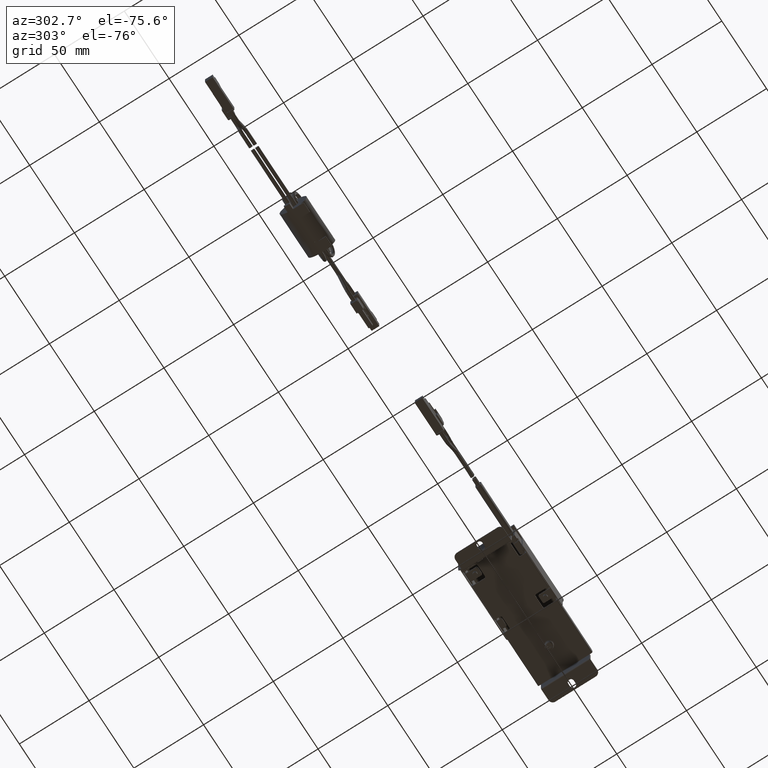
[diagram: clean part render]
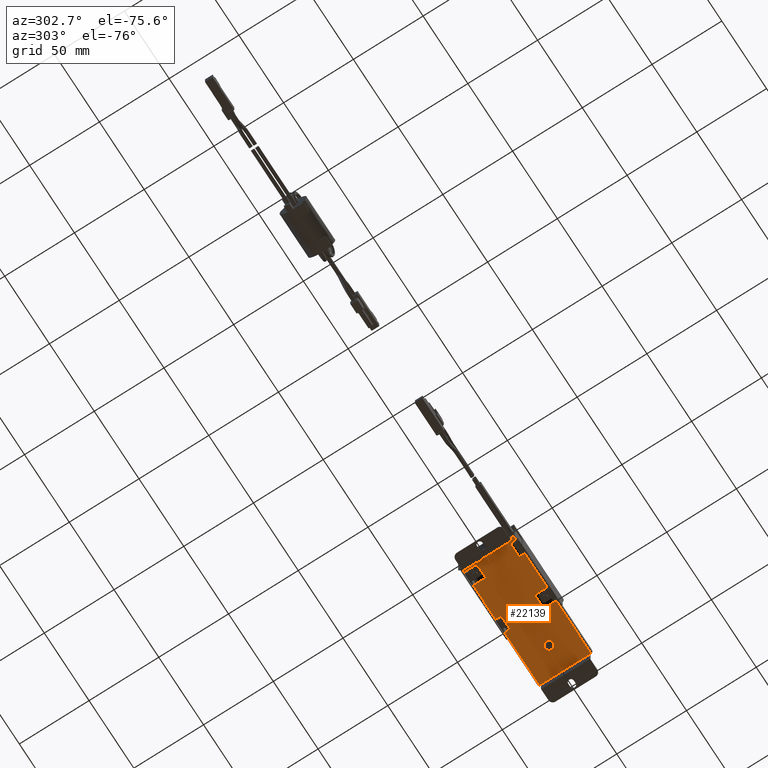
[diagram: same view with one face highlighted and labeled with its STEP entity id]
A machine part, auxiliary view. The second image highlights one B-rep face of the part: STEP entity #22139.
In plain terms, the highlighted face is a freeform B-spline surface patch.
Its self-contained STEP definition (entity closure, byte-faithful):
#18295=CARTESIAN_POINT('',(-25.699676512650960,2.985207617637829,9.937370197300428));
#18296=VERTEX_POINT('',#18295);
#18302=CARTESIAN_POINT('',(-22.526307356568019,-2.131628E-013,9.937370197300428));
#18303=VERTEX_POINT('',#18302);
#18304=CARTESIAN_POINT('',(-25.699676512650960,2.985207617637829,9.937370197300426));
#18305=CARTESIAN_POINT('',(-25.608470170901832,2.990786036474176,9.937370197300428));
#18306=CARTESIAN_POINT('',(-25.517093393042401,2.990786036474177,9.937370197300428));
#18307=CARTESIAN_POINT('',(-22.526307356568012,2.990786036474176,9.937370197300428));
#18308=CARTESIAN_POINT('',(-22.526307356568019,-2.131628E-013,9.937370197300428));
#18316=(BOUNDED_CURVE()B_SPLINE_CURVE(2,(#18304,#18305,#18306,#18307,#18308),.UNSPECIFIED.,.F.,.U.)B_SPLINE_CURVE_WITH_KNOTS((3,2,3),(0.239332962240780,0.250000000000000,0.500000000000000),.UNSPECIFIED.)CURVE()GEOMETRIC_REPRESENTATION_ITEM()RATIONAL_B_SPLINE_CURVE((0.976072041670656,0.987502787901990,1.0,0.707106781186547,1.0))REPRESENTATION_ITEM(''));
#18317=EDGE_CURVE('',#18296,#18303,#18316,.T.);
#18319=CARTESIAN_POINT('',(-25.334510273433839,-2.985207617638255,9.937370197300428));
#18320=VERTEX_POINT('',#18319);
#18321=CARTESIAN_POINT('',(-22.526307356568019,-2.131628E-013,9.937370197300428));
#18322=CARTESIAN_POINT('',(-22.526307356568015,-2.813450569309100,9.937370197300428));
#18323=CARTESIAN_POINT('',(-25.334510273433839,-2.985207617638255,9.937370197300428));
#18331=(BOUNDED_CURVE()B_SPLINE_CURVE(2,(#18321,#18322,#18323),.UNSPECIFIED.,.F.,.U.)B_SPLINE_CURVE_WITH_KNOTS((3,3),(0.500000000000000,0.739332962240780),.UNSPECIFIED.)CURVE()GEOMETRIC_REPRESENTATION_ITEM()RATIONAL_B_SPLINE_CURVE((1.0,0.719603993284558,0.976072041670655))REPRESENTATION_ITEM(''));
#18332=EDGE_CURVE('',#18303,#18320,#18331,.T.);
#18364=CARTESIAN_POINT('',(-28.507879429516791,-2.131628E-013,9.937370197300428));
#18365=VERTEX_POINT('',#18364);
#18366=CARTESIAN_POINT('',(-25.334510273433835,-2.985207617638255,9.937370197300428));
#18367=CARTESIAN_POINT('',(-25.425716615182967,-2.990786036474603,9.937370197300428));
#18368=CARTESIAN_POINT('',(-25.517093393042401,-2.990786036474603,9.937370197300428));
#18369=CARTESIAN_POINT('',(-28.507879429516798,-2.990786036474603,9.937370197300428));
#18370=CARTESIAN_POINT('',(-28.507879429516791,-2.131628E-013,9.937370197300428));
#18378=(BOUNDED_CURVE()B_SPLINE_CURVE(2,(#18366,#18367,#18368,#18369,#18370),.UNSPECIFIED.,.F.,.U.)B_SPLINE_CURVE_WITH_KNOTS((3,2,3),(0.739332962240780,0.750000000000000,1.0),.UNSPECIFIED.)CURVE()GEOMETRIC_REPRESENTATION_ITEM()RATIONAL_B_SPLINE_CURVE((0.976072041670655,0.987502787901990,1.0,0.707106781186547,1.0))REPRESENTATION_ITEM(''));
#18379=EDGE_CURVE('',#18320,#18365,#18378,.T.);
#18381=CARTESIAN_POINT('',(-28.507879429516791,-2.131628E-013,9.937370197300428));
#18382=CARTESIAN_POINT('',(-28.507879429516787,2.813450569308677,9.937370197300428));
#18383=CARTESIAN_POINT('',(-25.699676512650957,2.985207617637830,9.937370197300428));
#18391=(BOUNDED_CURVE()B_SPLINE_CURVE(2,(#18381,#18382,#18383),.UNSPECIFIED.,.F.,.U.)B_SPLINE_CURVE_WITH_KNOTS((3,3),(0.0,0.239332962240780),.UNSPECIFIED.)CURVE()GEOMETRIC_REPRESENTATION_ITEM()RATIONAL_B_SPLINE_CURVE((1.0,0.719603993284557,0.976072041670656))REPRESENTATION_ITEM(''));
#18392=EDGE_CURVE('',#18365,#18296,#18391,.T.);
#19391=CARTESIAN_POINT('',(-94.485565534138303,-17.500000000000000,9.937370197300428));
#19392=VERTEX_POINT('',#19391);
#19465=CARTESIAN_POINT('',(-94.485565534138303,17.500000000000000,9.937370197300449));
#19466=VERTEX_POINT('',#19465);
#19509=CARTESIAN_POINT('',(-7.513927424065190,17.499999999999648,9.937370197300428));
#19510=VERTEX_POINT('',#19509);
#19517=CARTESIAN_POINT('',(-7.513927424065170,-17.500000000000401,9.937370197300449));
#19518=VERTEX_POINT('',#19517);
#19524=CARTESIAN_POINT('',(-7.513927424065190,17.499999999999648,9.937370197300428));
#19525=CARTESIAN_POINT('',(-7.513927424065170,-17.500000000000401,9.937370197300449));
#19526=QUASI_UNIFORM_CURVE('',1,(#19524,#19525),.UNSPECIFIED.,.F.,.U.);
#19527=EDGE_CURVE('',#19510,#19518,#19526,.T.);
#19766=CARTESIAN_POINT('',(-94.485565534138303,17.500000000000000,9.937370197300449));
#19767=CARTESIAN_POINT('',(-94.485565534138303,-17.500000000000000,9.937370197300428));
#19768=QUASI_UNIFORM_CURVE('',1,(#19766,#19767),.UNSPECIFIED.,.F.,.U.);
#19769=EDGE_CURVE('',#19466,#19392,#19768,.T.);
#19796=CARTESIAN_POINT('',(-91.488721362279207,-18.501588054906851,9.937370197300428));
#19797=VERTEX_POINT('',#19796);
#19813=CARTESIAN_POINT('',(-94.485565534138203,-18.501588054906900,9.937370197300449));
#19814=VERTEX_POINT('',#19813);
#19828=CARTESIAN_POINT('',(-91.488721362279207,-18.501588054906851,9.937370197300428));
#19829=CARTESIAN_POINT('',(-94.485565534138203,-18.501588054906900,9.937370197300449));
#19830=QUASI_UNIFORM_CURVE('',1,(#19828,#19829),.UNSPECIFIED.,.F.,.U.);
#19831=EDGE_CURVE('',#19797,#19814,#19830,.T.);
#19852=CARTESIAN_POINT('',(-56.488721362279207,-18.501588054906851,9.937370197300428));
#19853=VERTEX_POINT('',#19852);
#19869=CARTESIAN_POINT('',(-81.488721362279193,-18.501588054906900,9.937370197300428));
#19870=VERTEX_POINT('',#19869);
#19884=CARTESIAN_POINT('',(-56.488721362279207,-18.501588054906851,9.937370197300428));
#19885=CARTESIAN_POINT('',(-81.488721362279193,-18.501588054906900,9.937370197300428));
#19886=QUASI_UNIFORM_CURVE('',1,(#19884,#19885),.UNSPECIFIED.,.F.,.U.);
#19887=EDGE_CURVE('',#19853,#19870,#19886,.T.);
#20517=CARTESIAN_POINT('',(-56.488721362279207,-10.501588054906859,9.937370197300428));
#20518=VERTEX_POINT('',#20517);
#20524=CARTESIAN_POINT('',(-55.488721362279207,-9.501588054906891,9.937370197300428));
#20525=VERTEX_POINT('',#20524);
#20526=CARTESIAN_POINT('',(-55.488721362279207,-9.501588054906900,9.937370197300428));
#20527=CARTESIAN_POINT('',(-56.488721362279207,-9.501588054906900,9.937370197300428));
#20528=CARTESIAN_POINT('',(-56.488721362279207,-10.501588054906900,9.937370197300428));
#20536=(BOUNDED_CURVE()B_SPLINE_CURVE(2,(#20526,#20527,#20528),.UNSPECIFIED.,.F.,.U.)CURVE()GEOMETRIC_REPRESENTATION_ITEM()QUASI_UNIFORM_CURVE()RATIONAL_B_SPLINE_CURVE((1.0,0.707106781186548,1.0))REPRESENTATION_ITEM(''));
#20537=EDGE_CURVE('',#20525,#20518,#20536,.T.);
#20561=CARTESIAN_POINT('',(-46.488721362279200,-10.501588054906859,9.937370197300428));
#20562=VERTEX_POINT('',#20561);
#20563=CARTESIAN_POINT('',(-47.488721362279207,-9.501588054906891,9.937370197300428));
#20564=VERTEX_POINT('',#20563);
#20565=CARTESIAN_POINT('',(-46.488721362279200,-10.501588054906900,9.937370197300428));
#20566=CARTESIAN_POINT('',(-46.488721362279200,-9.501588054906900,9.937370197300428));
#20567=CARTESIAN_POINT('',(-47.488721362279207,-9.501588054906900,9.937370197300428));
#20575=(BOUNDED_CURVE()B_SPLINE_CURVE(2,(#20565,#20566,#20567),.UNSPECIFIED.,.F.,.U.)CURVE()GEOMETRIC_REPRESENTATION_ITEM()QUASI_UNIFORM_CURVE()RATIONAL_B_SPLINE_CURVE((1.0,0.707106781186548,1.0))REPRESENTATION_ITEM(''));
#20576=EDGE_CURVE('',#20562,#20564,#20575,.T.);
#20639=CARTESIAN_POINT('',(-91.488721362279207,-15.501588054906851,9.937370197300428));
#20640=VERTEX_POINT('',#20639);
#20646=CARTESIAN_POINT('',(-90.488721362279207,-14.501588054906900,9.937370197300428));
#20647=VERTEX_POINT('',#20646);
#20648=CARTESIAN_POINT('',(-90.488721362279207,-14.501588054906900,9.937370197300428));
#20649=CARTESIAN_POINT('',(-91.488721362279222,-14.501588054906907,9.937370197300428));
#20650=CARTESIAN_POINT('',(-91.488721362279207,-15.501588054906900,9.937370197300428));
#20658=(BOUNDED_CURVE()B_SPLINE_CURVE(2,(#20648,#20649,#20650),.UNSPECIFIED.,.F.,.U.)CURVE()GEOMETRIC_REPRESENTATION_ITEM()QUASI_UNIFORM_CURVE()RATIONAL_B_SPLINE_CURVE((1.0,0.707106781186548,1.0))REPRESENTATION_ITEM(''));
#20659=EDGE_CURVE('',#20647,#20640,#20658,.T.);
#20683=CARTESIAN_POINT('',(-81.488721362279193,-15.501588054906851,9.937370197300428));
#20684=VERTEX_POINT('',#20683);
#20685=CARTESIAN_POINT('',(-82.488721362279193,-14.501588054906900,9.937370197300428));
#20686=VERTEX_POINT('',#20685);
#20687=CARTESIAN_POINT('',(-81.488721362279193,-15.501588054906900,9.937370197300428));
#20688=CARTESIAN_POINT('',(-81.488721362279193,-14.501588054906907,9.937370197300428));
#20689=CARTESIAN_POINT('',(-82.488721362279193,-14.501588054906900,9.937370197300428));
#20697=(BOUNDED_CURVE()B_SPLINE_CURVE(2,(#20687,#20688,#20689),.UNSPECIFIED.,.F.,.U.)CURVE()GEOMETRIC_REPRESENTATION_ITEM()QUASI_UNIFORM_CURVE()RATIONAL_B_SPLINE_CURVE((1.0,0.707106781186548,1.0))REPRESENTATION_ITEM(''));
#20698=EDGE_CURVE('',#20684,#20686,#20697,.T.);
#20744=CARTESIAN_POINT('',(-82.488721362279193,9.501588054906650,9.937370197300428));
#20745=VERTEX_POINT('',#20744);
#20751=CARTESIAN_POINT('',(-90.488721362279207,9.501588054906650,9.937370197300428));
#20752=VERTEX_POINT('',#20751);
#20753=CARTESIAN_POINT('',(-82.488721362279193,9.501588054906650,9.937370197300428));
#20754=CARTESIAN_POINT('',(-90.488721362279207,9.501588054906650,9.937370197300428));
#20755=QUASI_UNIFORM_CURVE('',1,(#20753,#20754),.UNSPECIFIED.,.F.,.U.);
#20756=EDGE_CURVE('',#20745,#20752,#20755,.T.);
#20846=CARTESIAN_POINT('',(-47.488721362279207,14.501588054906639,9.937370197300428));
#20847=VERTEX_POINT('',#20846);
#20853=CARTESIAN_POINT('',(-55.488721362279207,14.501588054906639,9.937370197300428));
#20854=VERTEX_POINT('',#20853);
#20855=CARTESIAN_POINT('',(-47.488721362279207,14.501588054906639,9.937370197300428));
#20856=CARTESIAN_POINT('',(-55.488721362279207,14.501588054906639,9.937370197300428));
#20857=QUASI_UNIFORM_CURVE('',1,(#20855,#20856),.UNSPECIFIED.,.F.,.U.);
#20858=EDGE_CURVE('',#20847,#20854,#20857,.T.);
#20881=CARTESIAN_POINT('',(-46.488721362279200,-18.501588054906900,9.937370197300428));
#20882=VERTEX_POINT('',#20881);
#20883=CARTESIAN_POINT('',(-46.488721362279200,-10.501588054906859,9.937370197300428));
#20884=CARTESIAN_POINT('',(-46.488721362279200,-18.501588054906900,9.937370197300428));
#20885=QUASI_UNIFORM_CURVE('',1,(#20883,#20884),.UNSPECIFIED.,.F.,.U.);
#20886=EDGE_CURVE('',#20562,#20882,#20885,.T.);
#20930=CARTESIAN_POINT('',(-56.488721362279207,-10.501588054906859,9.937370197300428));
#20931=CARTESIAN_POINT('',(-56.488721362279207,-18.501588054906851,9.937370197300428));
#20932=QUASI_UNIFORM_CURVE('',1,(#20930,#20931),.UNSPECIFIED.,.F.,.U.);
#20933=EDGE_CURVE('',#20518,#19853,#20932,.T.);
#21066=CARTESIAN_POINT('',(-55.488721362279207,-9.501588054906891,9.937370197300428));
#21067=CARTESIAN_POINT('',(-47.488721362279207,-9.501588054906891,9.937370197300428));
#21068=QUASI_UNIFORM_CURVE('',1,(#21066,#21067),.UNSPECIFIED.,.F.,.U.);
#21069=EDGE_CURVE('',#20525,#20564,#21068,.T.);
#21094=CARTESIAN_POINT('',(-81.488721362279193,-15.501588054906851,9.937370197300428));
#21095=CARTESIAN_POINT('',(-81.488721362279193,-18.501588054906900,9.937370197300428));
#21096=QUASI_UNIFORM_CURVE('',1,(#21094,#21095),.UNSPECIFIED.,.F.,.U.);
#21097=EDGE_CURVE('',#20684,#19870,#21096,.T.);
#21127=CARTESIAN_POINT('',(-91.488721362279207,-15.501588054906851,9.937370197300428));
#21128=CARTESIAN_POINT('',(-91.488721362279207,-18.501588054906851,9.937370197300428));
#21129=QUASI_UNIFORM_CURVE('',1,(#21127,#21128),.UNSPECIFIED.,.F.,.U.);
#21130=EDGE_CURVE('',#20640,#19797,#21129,.T.);
#21263=CARTESIAN_POINT('',(-90.488721362279207,-14.501588054906900,9.937370197300428));
#21264=CARTESIAN_POINT('',(-82.488721362279193,-14.501588054906900,9.937370197300428));
#21265=QUASI_UNIFORM_CURVE('',1,(#21263,#21264),.UNSPECIFIED.,.F.,.U.);
#21266=EDGE_CURVE('',#20647,#20686,#21265,.T.);
#21293=CARTESIAN_POINT('',(-7.513927424065170,-18.501588054906900,9.937370197300449));
#21294=VERTEX_POINT('',#21293);
#21295=CARTESIAN_POINT('',(-7.513927424065170,-18.501588054906900,9.937370197300449));
#21296=CARTESIAN_POINT('',(-46.488721362279200,-18.501588054906900,9.937370197300428));
#21297=QUASI_UNIFORM_CURVE('',1,(#21295,#21296),.UNSPECIFIED.,.F.,.U.);
#21298=EDGE_CURVE('',#21294,#20882,#21297,.T.);
#21724=CARTESIAN_POINT('',(-94.485565534138303,18.501588054906549,9.937370197300449));
#21725=VERTEX_POINT('',#21724);
#21739=CARTESIAN_POINT('',(-94.485565534138303,17.500000000000000,9.937370197300449));
#21740=CARTESIAN_POINT('',(-94.485565534138303,18.501588054906549,9.937370197300449));
#21741=QUASI_UNIFORM_CURVE('',1,(#21739,#21740),.UNSPECIFIED.,.F.,.U.);
#21742=EDGE_CURVE('',#19466,#21725,#21741,.T.);
#21772=CARTESIAN_POINT('',(-7.513927424065260,18.501588054906851,9.937370197300449));
#21773=VERTEX_POINT('',#21772);
#21774=CARTESIAN_POINT('',(-7.513927424065260,18.501588054906851,9.937370197300449));
#21775=CARTESIAN_POINT('',(-7.513927424065190,17.499999999999648,9.937370197300428));
#21776=QUASI_UNIFORM_CURVE('',1,(#21774,#21775),.UNSPECIFIED.,.F.,.U.);
#21777=EDGE_CURVE('',#21773,#19510,#21776,.T.);
#21829=CARTESIAN_POINT('',(-94.485565534138203,-18.501588054906900,9.937370197300449));
#21830=CARTESIAN_POINT('',(-94.485565534138303,-17.500000000000000,9.937370197300428));
#21831=QUASI_UNIFORM_CURVE('',1,(#21829,#21830),.UNSPECIFIED.,.F.,.U.);
#21832=EDGE_CURVE('',#19814,#19392,#21831,.T.);
#21854=CARTESIAN_POINT('',(-7.513927424065170,-17.500000000000401,9.937370197300449));
#21855=CARTESIAN_POINT('',(-7.513927424065170,-18.501588054906900,9.937370197300449));
#21856=QUASI_UNIFORM_CURVE('',1,(#21854,#21855),.UNSPECIFIED.,.F.,.U.);
#21857=EDGE_CURVE('',#19518,#21294,#21856,.T.);
#22002=CARTESIAN_POINT('',(-98.829798689168555,-20.349896629872770,9.937370197300428));
#22003=CARTESIAN_POINT('',(-3.169691936273812,-20.349896629872770,9.937370197300428));
#22004=CARTESIAN_POINT('',(-98.829798689168555,20.349897622375231,9.937370197300428));
#22005=CARTESIAN_POINT('',(-3.169691936273812,20.349897622375231,9.937370197300428));
#22006=B_SPLINE_SURFACE_WITH_KNOTS('',1,1,((#22002,#22004),(#22003,#22005)),.UNSPECIFIED.,.F.,.F.,.U.,(2,2),(2,2),(0.0,95.660106752894748),(0.0,40.699794252247997),.UNSPECIFIED.);
#22007=ORIENTED_EDGE('',*,*,#20756,.F.);
#22008=CARTESIAN_POINT('',(-81.488721362279193,10.501588054906639,9.937370197300428));
#22009=VERTEX_POINT('',#22008);
#22010=CARTESIAN_POINT('',(-82.488721362279193,9.501588054906641,9.937370197300428));
#22011=CARTESIAN_POINT('',(-81.488721362279193,9.501588054906641,9.937370197300428));
#22012=CARTESIAN_POINT('',(-81.488721362279193,10.501588054906639,9.937370197300428));
#22020=(BOUNDED_CURVE()B_SPLINE_CURVE(2,(#22010,#22011,#22012),.UNSPECIFIED.,.F.,.U.)CURVE()GEOMETRIC_REPRESENTATION_ITEM()QUASI_UNIFORM_CURVE()RATIONAL_B_SPLINE_CURVE((1.0,0.707106781186548,1.0))REPRESENTATION_ITEM(''));
#22021=EDGE_CURVE('',#20745,#22009,#22020,.T.);
#22022=ORIENTED_EDGE('',*,*,#22021,.T.);
#22023=CARTESIAN_POINT('',(-81.488721362279193,18.501588054906549,9.937370197300428));
#22024=VERTEX_POINT('',#22023);
#22025=CARTESIAN_POINT('',(-81.488721362279193,10.501588054906639,9.937370197300428));
#22026=CARTESIAN_POINT('',(-81.488721362279193,18.501588054906549,9.937370197300428));
#22027=QUASI_UNIFORM_CURVE('',1,(#22025,#22026),.UNSPECIFIED.,.F.,.U.);
#22028=EDGE_CURVE('',#22009,#22024,#22027,.T.);
#22029=ORIENTED_EDGE('',*,*,#22028,.T.);
#22030=CARTESIAN_POINT('',(-56.488721362279207,18.501588054906701,9.937370197300428));
#22031=VERTEX_POINT('',#22030);
#22032=CARTESIAN_POINT('',(-81.488721362279193,18.501588054906549,9.937370197300428));
#22033=CARTESIAN_POINT('',(-56.488721362279207,18.501588054906701,9.937370197300428));
#22034=QUASI_UNIFORM_CURVE('',1,(#22032,#22033),.UNSPECIFIED.,.F.,.U.);
#22035=EDGE_CURVE('',#22024,#22031,#22034,.T.);
#22036=ORIENTED_EDGE('',*,*,#22035,.T.);
#22037=CARTESIAN_POINT('',(-56.488721362279207,15.501588054906650,9.937370197300428));
#22038=VERTEX_POINT('',#22037);
#22039=CARTESIAN_POINT('',(-56.488721362279207,15.501588054906650,9.937370197300428));
#22040=CARTESIAN_POINT('',(-56.488721362279207,18.501588054906701,9.937370197300428));
#22041=QUASI_UNIFORM_CURVE('',1,(#22039,#22040),.UNSPECIFIED.,.F.,.U.);
#22042=EDGE_CURVE('',#22038,#22031,#22041,.T.);
#22043=ORIENTED_EDGE('',*,*,#22042,.F.);
#22044=CARTESIAN_POINT('',(-56.488721362279207,15.501588054906650,9.937370197300428));
#22045=CARTESIAN_POINT('',(-56.488721362279207,14.501588054906652,9.937370197300428));
#22046=CARTESIAN_POINT('',(-55.488721362279207,14.501588054906650,9.937370197300428));
#22054=(BOUNDED_CURVE()B_SPLINE_CURVE(2,(#22044,#22045,#22046),.UNSPECIFIED.,.F.,.U.)CURVE()GEOMETRIC_REPRESENTATION_ITEM()QUASI_UNIFORM_CURVE()RATIONAL_B_SPLINE_CURVE((1.0,0.707106781186548,1.0))REPRESENTATION_ITEM(''));
#22055=EDGE_CURVE('',#22038,#20854,#22054,.T.);
#22056=ORIENTED_EDGE('',*,*,#22055,.T.);
#22057=ORIENTED_EDGE('',*,*,#20858,.F.);
#22058=CARTESIAN_POINT('',(-46.488721362279200,15.501588054906650,9.937370197300428));
#22059=VERTEX_POINT('',#22058);
#22060=CARTESIAN_POINT('',(-47.488721362279207,14.501588054906650,9.937370197300428));
#22061=CARTESIAN_POINT('',(-46.488721362279200,14.501588054906652,9.937370197300428));
#22062=CARTESIAN_POINT('',(-46.488721362279200,15.501588054906650,9.937370197300428));
#22070=(BOUNDED_CURVE()B_SPLINE_CURVE(2,(#22060,#22061,#22062),.UNSPECIFIED.,.F.,.U.)CURVE()GEOMETRIC_REPRESENTATION_ITEM()QUASI_UNIFORM_CURVE()RATIONAL_B_SPLINE_CURVE((1.0,0.707106781186548,1.0))REPRESENTATION_ITEM(''));
#22071=EDGE_CURVE('',#20847,#22059,#22070,.T.);
#22072=ORIENTED_EDGE('',*,*,#22071,.T.);
#22073=CARTESIAN_POINT('',(-46.488721362279200,18.501588054906751,9.937370197300428));
#22074=VERTEX_POINT('',#22073);
#22075=CARTESIAN_POINT('',(-46.488721362279200,15.501588054906650,9.937370197300428));
#22076=CARTESIAN_POINT('',(-46.488721362279200,18.501588054906751,9.937370197300428));
#22077=QUASI_UNIFORM_CURVE('',1,(#22075,#22076),.UNSPECIFIED.,.F.,.U.);
#22078=EDGE_CURVE('',#22059,#22074,#22077,.T.);
#22079=ORIENTED_EDGE('',*,*,#22078,.T.);
#22080=CARTESIAN_POINT('',(-46.488721362279200,18.501588054906751,9.937370197300428));
#22081=CARTESIAN_POINT('',(-7.513927424065260,18.501588054906851,9.937370197300449));
#22082=QUASI_UNIFORM_CURVE('',1,(#22080,#22081),.UNSPECIFIED.,.F.,.U.);
#22083=EDGE_CURVE('',#22074,#21773,#22082,.T.);
#22084=ORIENTED_EDGE('',*,*,#22083,.T.);
#22085=ORIENTED_EDGE('',*,*,#21777,.T.);
#22086=ORIENTED_EDGE('',*,*,#19527,.T.);
#22087=ORIENTED_EDGE('',*,*,#21857,.T.);
#22088=ORIENTED_EDGE('',*,*,#21298,.T.);
#22089=ORIENTED_EDGE('',*,*,#20886,.F.);
#22090=ORIENTED_EDGE('',*,*,#20576,.T.);
#22091=ORIENTED_EDGE('',*,*,#21069,.F.);
#22092=ORIENTED_EDGE('',*,*,#20537,.T.);
#22093=ORIENTED_EDGE('',*,*,#20933,.T.);
#22094=ORIENTED_EDGE('',*,*,#19887,.T.);
#22095=ORIENTED_EDGE('',*,*,#21097,.F.);
#22096=ORIENTED_EDGE('',*,*,#20698,.T.);
#22097=ORIENTED_EDGE('',*,*,#21266,.F.);
#22098=ORIENTED_EDGE('',*,*,#20659,.T.);
#22099=ORIENTED_EDGE('',*,*,#21130,.T.);
#22100=ORIENTED_EDGE('',*,*,#19831,.T.);
#22101=ORIENTED_EDGE('',*,*,#21832,.T.);
#22102=ORIENTED_EDGE('',*,*,#19769,.F.);
#22103=ORIENTED_EDGE('',*,*,#21742,.T.);
#22104=CARTESIAN_POINT('',(-91.488721362279207,18.501588054906549,9.937370197300428));
#22105=VERTEX_POINT('',#22104);
#22106=CARTESIAN_POINT('',(-94.485565534138303,18.501588054906549,9.937370197300449));
#22107=CARTESIAN_POINT('',(-91.488721362279207,18.501588054906549,9.937370197300428));
#22108=QUASI_UNIFORM_CURVE('',1,(#22106,#22107),.UNSPECIFIED.,.F.,.U.);
#22109=EDGE_CURVE('',#21725,#22105,#22108,.T.);
#22110=ORIENTED_EDGE('',*,*,#22109,.T.);
#22111=CARTESIAN_POINT('',(-91.488721362279207,10.501588054906639,9.937370197300428));
#22112=VERTEX_POINT('',#22111);
#22113=CARTESIAN_POINT('',(-91.488721362279207,10.501588054906639,9.937370197300428));
#22114=CARTESIAN_POINT('',(-91.488721362279207,18.501588054906549,9.937370197300428));
#22115=QUASI_UNIFORM_CURVE('',1,(#22113,#22114),.UNSPECIFIED.,.F.,.U.);
#22116=EDGE_CURVE('',#22112,#22105,#22115,.T.);
#22117=ORIENTED_EDGE('',*,*,#22116,.F.);
#22118=CARTESIAN_POINT('',(-91.488721362279207,10.501588054906639,9.937370197300428));
#22119=CARTESIAN_POINT('',(-91.488721362279222,9.501588054906641,9.937370197300428));
#22120=CARTESIAN_POINT('',(-90.488721362279207,9.501588054906641,9.937370197300428));
#22128=(BOUNDED_CURVE()B_SPLINE_CURVE(2,(#22118,#22119,#22120),.UNSPECIFIED.,.F.,.U.)CURVE()GEOMETRIC_REPRESENTATION_ITEM()QUASI_UNIFORM_CURVE()RATIONAL_B_SPLINE_CURVE((1.0,0.707106781186548,1.0))REPRESENTATION_ITEM(''));
#22129=EDGE_CURVE('',#22112,#20752,#22128,.T.);
#22130=ORIENTED_EDGE('',*,*,#22129,.T.);
#22131=EDGE_LOOP('',(#22007,#22022,#22029,#22036,#22043,#22056,#22057,#22072,#22079,#22084,#22085,#22086,#22087,#22088,#22089,#22090,#22091,#22092,#22093,#22094,#22095,#22096,#22097,#22098,#22099,#22100,#22101,#22102,#22103,#22110,#22117,#22130));
#22132=FACE_OUTER_BOUND('',#22131,.T.);
#22133=ORIENTED_EDGE('',*,*,#18332,.F.);
#22134=ORIENTED_EDGE('',*,*,#18317,.F.);
#22135=ORIENTED_EDGE('',*,*,#18392,.F.);
#22136=ORIENTED_EDGE('',*,*,#18379,.F.);
#22137=EDGE_LOOP('',(#22133,#22134,#22135,#22136));
#22138=FACE_BOUND('',#22137,.T.);
#22139=ADVANCED_FACE('',(#22132,#22138),#22006,.F.);